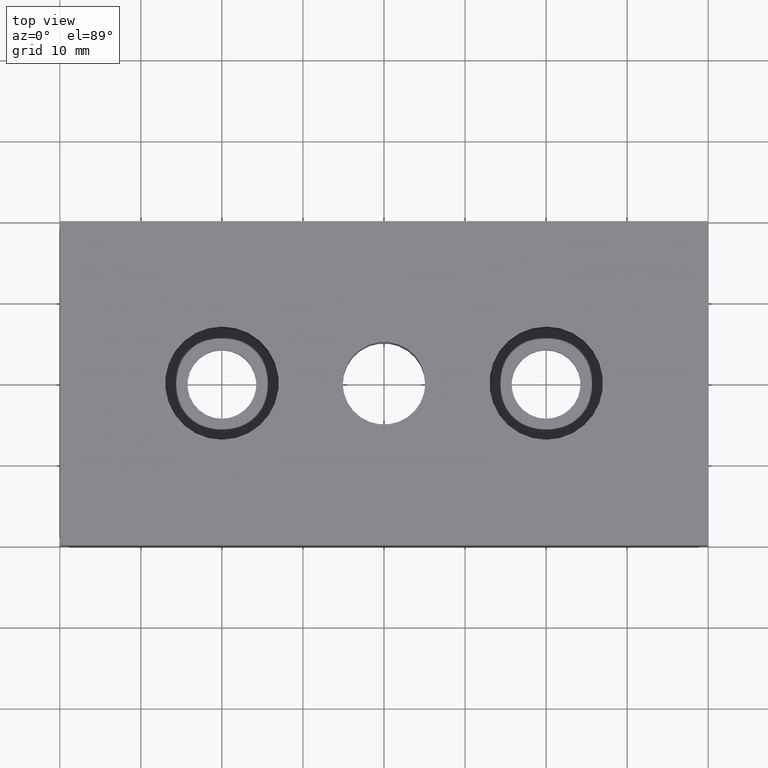
[diagram: clean part render]
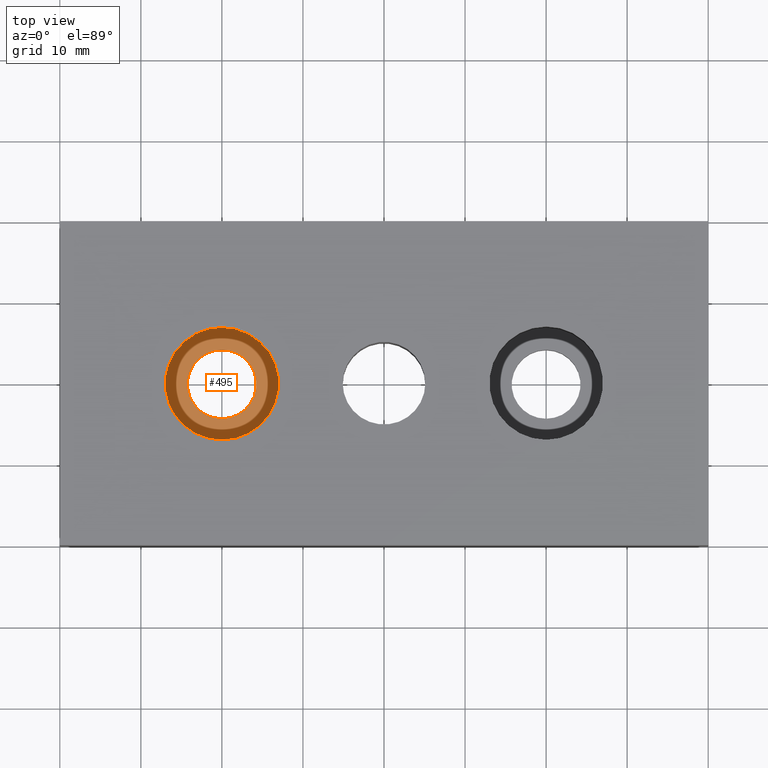
[diagram: same view with one face highlighted and labeled with its STEP entity id]
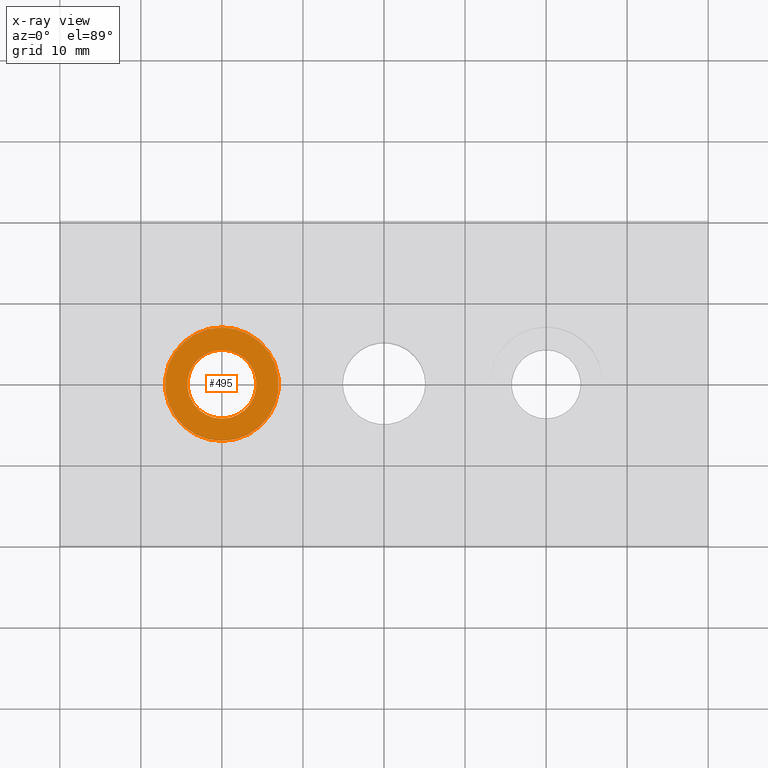
[diagram: x-ray of the same camera — body ghosted, the highlighted face saturated]
A machine part, top view. The second image highlights one B-rep face of the part: STEP entity #495.
The next image is the same camera in x-ray: the body ghosted, the highlighted face saturated — about 0% of this face is hidden behind the body in this view.
In plain terms, the highlighted planar face has unit normal (0, 0, -1).
Its self-contained STEP definition (entity closure, byte-faithful):
#49=CARTESIAN_POINT('',(-60.0,4.249999999999991,4.0));
#50=VERTEX_POINT('',#49);
#51=CARTESIAN_POINT('',(-60.0,-4.250000000000009,4.0));
#52=VERTEX_POINT('',#51);
#53=CARTESIAN_POINT('',(-60.0,-8.881784E-015,4.0));
#54=DIRECTION('',(0.0,0.0,-1.0));
#55=DIRECTION('',(-1.0,0.0,0.0));
#56=AXIS2_PLACEMENT_3D('',#53,#54,#55);
#57=CIRCLE('',#56,4.249999999999997);
#58=EDGE_CURVE('',#50,#52,#57,.T.);
#102=CARTESIAN_POINT('',(-59.999999999999993,6.999999999999991,4.0));
#103=VERTEX_POINT('',#102);
#110=CARTESIAN_POINT('',(-59.999999999999993,-7.000000000000007,4.0));
#111=VERTEX_POINT('',#110);
#112=CARTESIAN_POINT('',(-59.999999999999993,-8.881784E-015,4.0));
#113=DIRECTION('',(0.0,0.0,1.0));
#114=DIRECTION('',(0.0,-1.0,0.0));
#115=AXIS2_PLACEMENT_3D('',#112,#113,#114);
#116=CIRCLE('',#115,6.999999999999997);
#117=EDGE_CURVE('',#111,#103,#116,.T.);
#470=CARTESIAN_POINT('',(-52.299999999999997,-7.700000000000008,4.0));
#471=DIRECTION('',(0.0,0.0,-1.0));
#472=DIRECTION('',(-1.0,0.0,0.0));
#473=AXIS2_PLACEMENT_3D('',#470,#471,#472);
#474=PLANE('',#473);
#475=ORIENTED_EDGE('',*,*,#117,.T.);
#476=CARTESIAN_POINT('',(-59.999999999999993,-8.881784E-015,4.0));
#477=DIRECTION('',(0.0,0.0,1.0));
#478=DIRECTION('',(0.0,-1.0,0.0));
#479=AXIS2_PLACEMENT_3D('',#476,#477,#478);
#480=CIRCLE('',#479,6.999999999999997);
#481=EDGE_CURVE('',#103,#111,#480,.T.);
#482=ORIENTED_EDGE('',*,*,#481,.T.);
#483=EDGE_LOOP('',(#475,#482));
#484=FACE_OUTER_BOUND('',#483,.T.);
#485=CARTESIAN_POINT('',(-60.0,-8.881784E-015,4.0));
#486=DIRECTION('',(0.0,0.0,-1.0));
#487=DIRECTION('',(-1.0,0.0,0.0));
#488=AXIS2_PLACEMENT_3D('',#485,#486,#487);
#489=CIRCLE('',#488,4.249999999999997);
#490=EDGE_CURVE('',#52,#50,#489,.T.);
#491=ORIENTED_EDGE('',*,*,#490,.T.);
#492=ORIENTED_EDGE('',*,*,#58,.T.);
#493=EDGE_LOOP('',(#491,#492));
#494=FACE_BOUND('',#493,.T.);
#495=ADVANCED_FACE('',(#484,#494),#474,.F.);